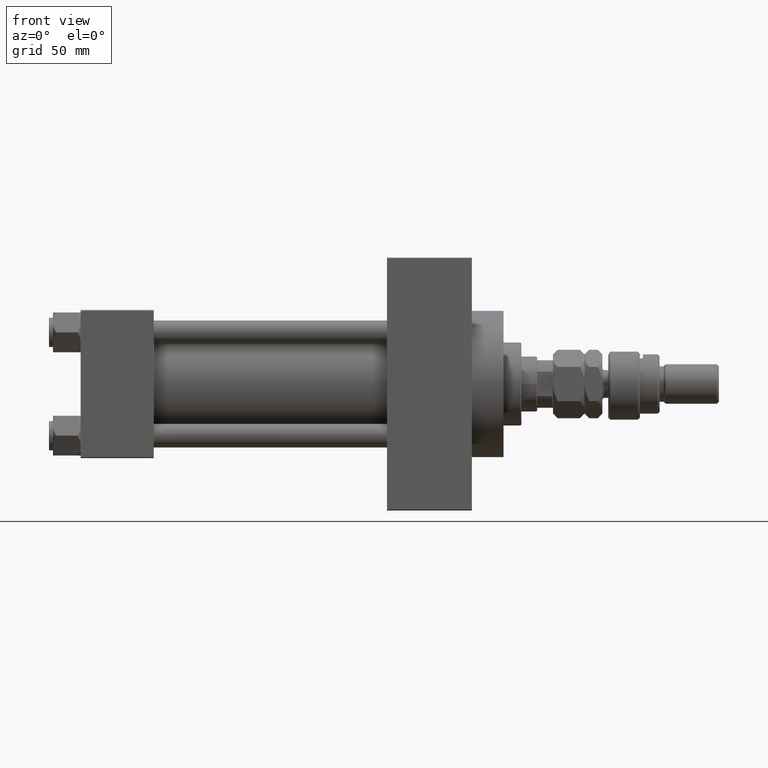
[diagram: clean part render]
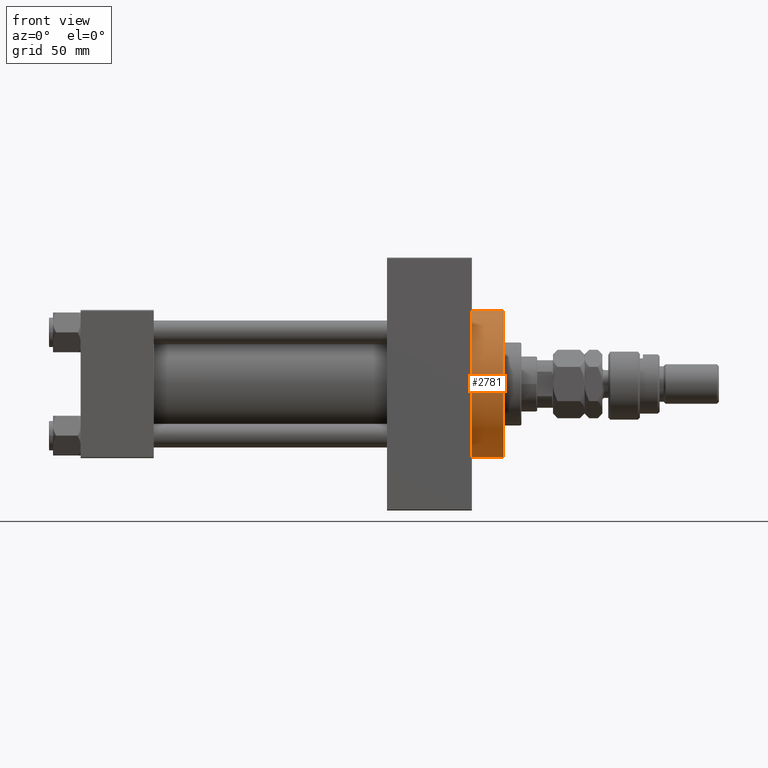
[diagram: same view with one face highlighted and labeled with its STEP entity id]
A machine part, front view. The second image highlights one B-rep face of the part: STEP entity #2781.
In plain terms, the highlighted cylindrical surface (partial cylindrical patch) has radius 37 mm, axis along (-1, -0, -0).
Its self-contained STEP definition (entity closure, byte-faithful):
#24 = LINE ( 'NONE', #31550, #41533 ) ;
#2781 = ADVANCED_FACE ( 'NONE', ( #22639 ), #18836, .T. ) ;
#5601 = EDGE_CURVE ( 'NONE', #39936, #11563, #24, .T. ) ;
#8205 = CARTESIAN_POINT ( 'NONE',  ( 214.0000000000000284, 0.000000000000000000, 0.000000000000000000 ) ) ;
#10868 = CARTESIAN_POINT ( 'NONE',  ( 198.0000000000000000, 4.531193156845206793E-15, -37.00000000000000000 ) ) ;
#11119 = VERTEX_POINT ( 'NONE', #10868 ) ;
#11563 = VERTEX_POINT ( 'NONE', #48920 ) ;
#11757 = DIRECTION ( 'NONE',  ( 0.000000000000000000, 0.000000000000000000, -1.000000000000000000 ) ) ;
#12113 = VECTOR ( 'NONE', #42816, 1000.000000000000000 ) ;
#12959 = CARTESIAN_POINT ( 'NONE',  ( 214.0000000000000284, 4.531193156845206793E-15, -37.00000000000000000 ) ) ;
#14494 = ORIENTED_EDGE ( 'NONE', *, *, #40912, .T. ) ;
#14835 = CARTESIAN_POINT ( 'NONE',  ( 214.0000000000000284, 0.000000000000000000, 37.00000000000000000 ) ) ;
#15540 = DIRECTION ( 'NONE',  ( -1.000000000000000000, -0.000000000000000000, -0.000000000000000000 ) ) ;
#16236 = AXIS2_PLACEMENT_3D ( 'NONE', #42185, #22885, #38376 ) ;
#18037 = CIRCLE ( 'NONE', #24520, 37.00000000000000000 ) ;
#18340 = AXIS2_PLACEMENT_3D ( 'NONE', #30362, #31100, #11757 ) ;
#18836 = CYLINDRICAL_SURFACE ( 'NONE', #16236, 37.00000000000000000 ) ;
#19096 = EDGE_CURVE ( 'NONE', #39936, #20616, #18037, .T. ) ;
#20616 = VERTEX_POINT ( 'NONE', #12959 ) ;
#21596 = CIRCLE ( 'NONE', #18340, 37.00000000000000000 ) ;
#22639 = FACE_OUTER_BOUND ( 'NONE', #36441, .T. ) ;
#22885 = DIRECTION ( 'NONE',  ( -1.000000000000000000, -0.000000000000000000, -0.000000000000000000 ) ) ;
#24059 = ORIENTED_EDGE ( 'NONE', *, *, #19096, .F. ) ;
#24520 = AXIS2_PLACEMENT_3D ( 'NONE', #8205, #34899, #28029 ) ;
#28029 = DIRECTION ( 'NONE',  ( 0.000000000000000000, 0.000000000000000000, -1.000000000000000000 ) ) ;
#30362 = CARTESIAN_POINT ( 'NONE',  ( 198.0000000000000000, 0.000000000000000000, 0.000000000000000000 ) ) ;
#31100 = DIRECTION ( 'NONE',  ( 1.000000000000000000, 0.000000000000000000, 0.000000000000000000 ) ) ;
#31550 = CARTESIAN_POINT ( 'NONE',  ( 214.0000000000000284, 0.000000000000000000, 37.00000000000000000 ) ) ;
#33887 = ORIENTED_EDGE ( 'NONE', *, *, #49329, .F. ) ;
#34899 = DIRECTION ( 'NONE',  ( 1.000000000000000000, 0.000000000000000000, 0.000000000000000000 ) ) ;
#36441 = EDGE_LOOP ( 'NONE', ( #33887, #24059, #49472, #14494 ) ) ;
#38376 = DIRECTION ( 'NONE',  ( 0.000000000000000000, 0.000000000000000000, 1.000000000000000000 ) ) ;
#39499 = CARTESIAN_POINT ( 'NONE',  ( 214.0000000000000284, 4.531193156845206793E-15, -37.00000000000000000 ) ) ;
#39744 = LINE ( 'NONE', #39499, #12113 ) ;
#39936 = VERTEX_POINT ( 'NONE', #14835 ) ;
#40912 = EDGE_CURVE ( 'NONE', #11563, #11119, #21596, .T. ) ;
#41533 = VECTOR ( 'NONE', #15540, 1000.000000000000000 ) ;
#42185 = CARTESIAN_POINT ( 'NONE',  ( 214.0000000000000284, 0.000000000000000000, 0.000000000000000000 ) ) ;
#42816 = DIRECTION ( 'NONE',  ( -1.000000000000000000, -0.000000000000000000, -0.000000000000000000 ) ) ;
#48920 = CARTESIAN_POINT ( 'NONE',  ( 198.0000000000000000, 0.000000000000000000, 37.00000000000000000 ) ) ;
#49329 = EDGE_CURVE ( 'NONE', #20616, #11119, #39744, .T. ) ;
#49472 = ORIENTED_EDGE ( 'NONE', *, *, #5601, .T. ) ;